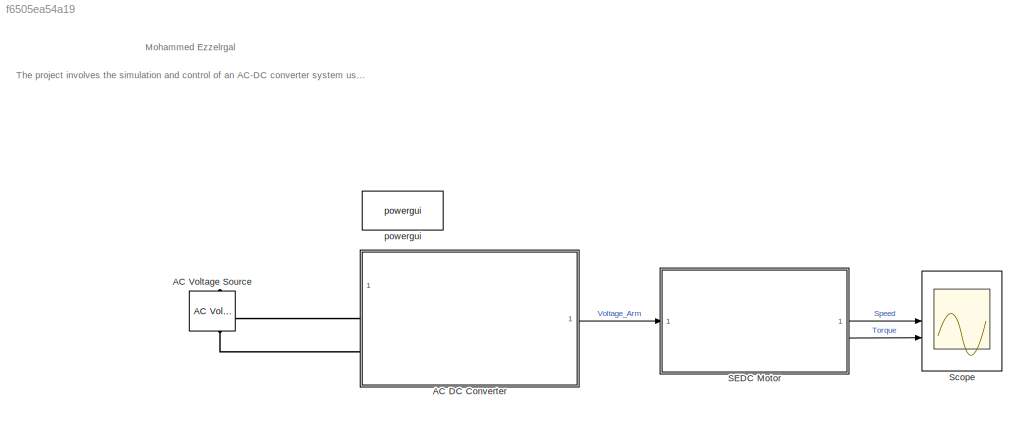
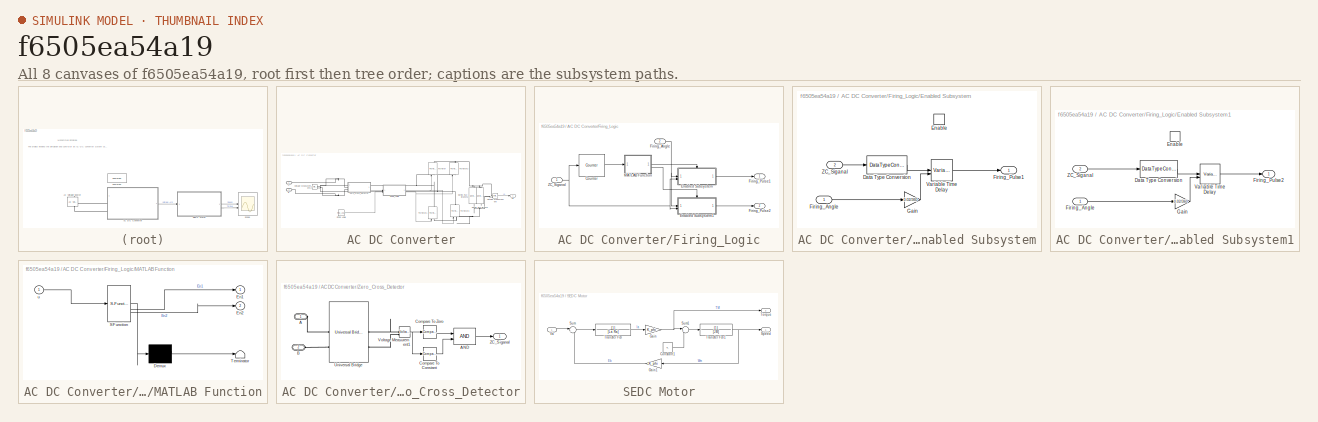
[diagram: thumbnail index - all 8 canvases of the model, root first then tree order]
MODEL slx_f6505ea54a19
KIND model
CONFIG AbsTol = auto
CONFIG EnableMultiTasking = off
CONFIG FixedStep = auto
CONFIG MaxStep = 0.001
CONFIG MinStep = auto
CONFIG RelTol = 1e-3
CONFIG SampleTimeConstraint = Unconstrained
CONFIG SolverName = VariableStepAuto
CONFIG StartTime = 0.0
CONFIG StopTime = 10
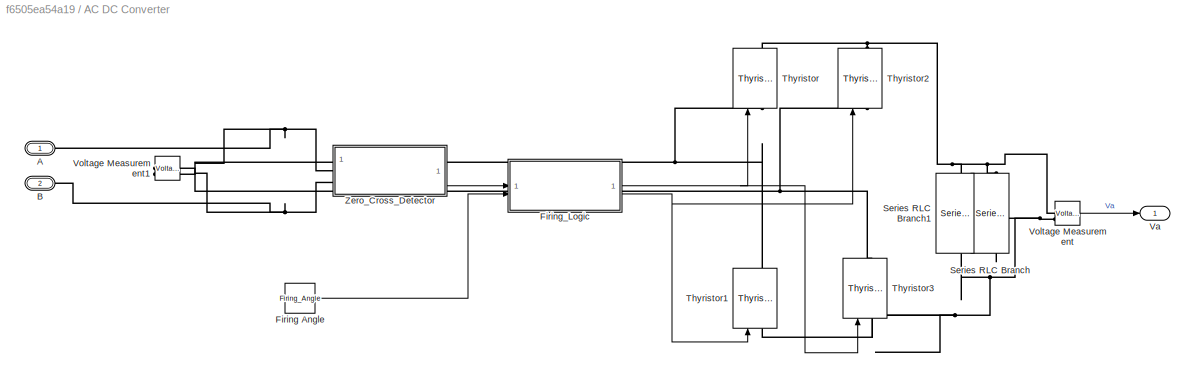
BLOCK [SubSystem] AC DC Converter
BLOCK [PMIOPort] AC DC Converter/A
  Side = Left
BLOCK [PMIOPort] AC DC Converter/B
  Port = 2
  Side = Left
BLOCK [Constant] AC DC Converter/Firing Angle
  Value = Firing_Angle
BLOCK [SubSystem] AC DC Converter/Firing_Logic
BLOCK [Reference] AC DC Converter/Firing_Logic/Counter  REF=dspswit3/Counter
  SourceBlock = dspswit3/Counter
  SourceType = Counter
BLOCK [SubSystem] AC DC Converter/Firing_Logic/Enabled Subsystem
  TreatAsAtomicUnit = on
BLOCK [DataTypeConversion] AC DC Converter/Firing_Logic/Enabled Subsystem/Data Type Conversion
  OutDataTypeStr = double
  RndMeth = Floor
  SaturateOnIntegerOverflow = off
BLOCK [EnablePort] AC DC Converter/Firing_Logic/Enabled Subsystem/Enable
BLOCK [Inport] AC DC Converter/Firing_Logic/Enabled Subsystem/Firing_Angle
BLOCK [Outport] AC DC Converter/Firing_Logic/Enabled Subsystem/Firing_Pulse1
BLOCK [Gain] AC DC Converter/Firing_Logic/Enabled Subsystem/Gain
  Gain = 0.02/360
BLOCK [VariableTransportDelay] AC DC Converter/Firing_Logic/Enabled Subsystem/Variable Time Delay
  MaximumDelay = 10
BLOCK [Inport] AC DC Converter/Firing_Logic/Enabled Subsystem/ZC_Siganal
  Port = 2
BLOCK [SubSystem] AC DC Converter/Firing_Logic/Enabled Subsystem1
  TreatAsAtomicUnit = on
BLOCK [DataTypeConversion] AC DC Converter/Firing_Logic/Enabled Subsystem1/Data Type Conversion
  OutDataTypeStr = double
  RndMeth = Floor
  SaturateOnIntegerOverflow = off
BLOCK [EnablePort] AC DC Converter/Firing_Logic/Enabled Subsystem1/Enable
BLOCK [Inport] AC DC Converter/Firing_Logic/Enabled Subsystem1/Firing_Angle
BLOCK [Outport] AC DC Converter/Firing_Logic/Enabled Subsystem1/Firing_Pulse2
BLOCK [Gain] AC DC Converter/Firing_Logic/Enabled Subsystem1/Gain
  Gain = 0.02/360
BLOCK [VariableTransportDelay] AC DC Converter/Firing_Logic/Enabled Subsystem1/Variable Time Delay
  MaximumDelay = 10
BLOCK [Inport] AC DC Converter/Firing_Logic/Enabled Subsystem1/ZC_Siganal
  Port = 2
BLOCK [Inport] AC DC Converter/Firing_Logic/Firing_Angle
  Port = 2
BLOCK [Outport] AC DC Converter/Firing_Logic/Firing_Pulse1
BLOCK [Outport] AC DC Converter/Firing_Logic/Firing_Pulse2
  Port = 2
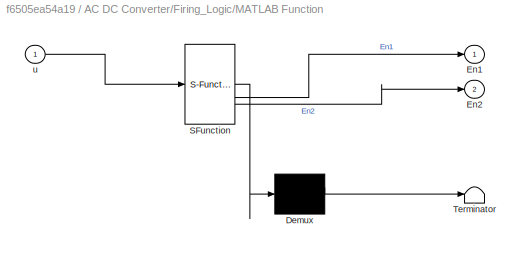
BLOCK [SubSystem] AC DC Converter/Firing_Logic/MATLAB Function
  ErrorFcn = Stateflow.Translate.translate
  LibrarySourceBlock = simulink/User-Defined\nFunctions/MATLAB Function
  PermitHierarchicalResolution = ExplicitOnly
  SFBlockType = MATLAB Function
  TreatAsAtomicUnit = on
BLOCK [Demux] AC DC Converter/Firing_Logic/MATLAB Function/ Demux 
  Outputs = 1
BLOCK [S-Function] AC DC Converter/Firing_Logic/MATLAB Function/ SFunction 
  EnableBusSupport = on
  FunctionName = sf_sfun
  PortCounts = [1 3]
  SFcnIsStateOwnerBlock = off
  SFunctionDeploymentMode = off
  Tag = Stateflow S-Function 1
BLOCK [Terminator] AC DC Converter/Firing_Logic/MATLAB Function/ Terminator 
BLOCK [Outport] AC DC Converter/Firing_Logic/MATLAB Function/En1
BLOCK [Outport] AC DC Converter/Firing_Logic/MATLAB Function/En2
  Port = 2
BLOCK [Inport] AC DC Converter/Firing_Logic/MATLAB Function/u
BLOCK [Inport] AC DC Converter/Firing_Logic/ZC_Siganal
BLOCK [Reference] AC DC Converter/Series RLC Branch  REF=spsSeriesRLCBranchLib/Series RLC Branch
  LibrarySourceBlock = sps_lib/Passives/Series RLC Branch
  NameLocation = left
  SourceBlock = spsSeriesRLCBranchLib/Series RLC Branch
  SourceType = Series RLC Branch
BLOCK [Reference] AC DC Converter/Series RLC Branch1  REF=spsSeriesRLCBranchLib/Series RLC Branch
  LibrarySourceBlock = sps_lib/Passives/Series RLC Branch
  NameLocation = left
  SourceBlock = spsSeriesRLCBranchLib/Series RLC Branch
  SourceType = Series RLC Branch
BLOCK [Reference] AC DC Converter/Thyristor  REF=spsThyristorLib/Thyristor
  LibrarySourceBlock = sps_lib/Power Electronics/Thyristor
  NameLocation = right
  SourceBlock = spsThyristorLib/Thyristor
  SourceType = Thyristor
BLOCK [Reference] AC DC Converter/Thyristor1  REF=spsThyristorLib/Thyristor
  LibrarySourceBlock = sps_lib/Power Electronics/Thyristor
  NameLocation = right
  SourceBlock = spsThyristorLib/Thyristor
  SourceType = Thyristor
BLOCK [Reference] AC DC Converter/Thyristor2  REF=spsThyristorLib/Thyristor
  LibrarySourceBlock = sps_lib/Power Electronics/Thyristor
  NameLocation = right
  SourceBlock = spsThyristorLib/Thyristor
  SourceType = Thyristor
BLOCK [Reference] AC DC Converter/Thyristor3  REF=spsThyristorLib/Thyristor
  LibrarySourceBlock = sps_lib/Power Electronics/Thyristor
  NameLocation = right
  SourceBlock = spsThyristorLib/Thyristor
  SourceType = Thyristor
BLOCK [Outport] AC DC Converter/Va
BLOCK [Reference] AC DC Converter/Voltage Measurement  REF=spsVoltageMeasurementLib/Voltage Measurement
  LibrarySourceBlock = sps_lib/Sensors and Measurements/Voltage Measurement
  SourceBlock = spsVoltageMeasurementLib/Voltage Measurement
  SourceType = Voltage Measurement
  UserDataPersistent = on
BLOCK [Reference] AC DC Converter/Voltage Measurement1  REF=spsVoltageMeasurementLib/Voltage Measurement
  LibrarySourceBlock = sps_lib/Sensors and Measurements/Voltage Measurement
  NameLocation = top
  SourceBlock = spsVoltageMeasurementLib/Voltage Measurement
  SourceType = Voltage Measurement
  UserDataPersistent = on
BLOCK [SubSystem] AC DC Converter/Zero_Cross_Detector
BLOCK [PMIOPort] AC DC Converter/Zero_Cross_Detector/A
  Side = Left
BLOCK [Logic] AC DC Converter/Zero_Cross_Detector/AND
  AllPortsSameDT = off
  IconShape = distinctive
  OutDataTypeStr = boolean
BLOCK [PMIOPort] AC DC Converter/Zero_Cross_Detector/B
  Port = 2
  Side = Left
BLOCK [Reference] AC DC Converter/Zero_Cross_Detector/Compare To Constant  REF=simulink/Logic and Bit
Operations/Compare
To Constant
  SourceBlock = simulink/Logic and Bit\nOperations/Compare\nTo Constant
  SourceType = Compare To Constant
BLOCK [Reference] AC DC Converter/Zero_Cross_Detector/Compare To Zero  REF=simulink/Logic and Bit
Operations/Compare
To Zero
  SourceBlock = simulink/Logic and Bit\nOperations/Compare\nTo Zero
  SourceType = Compare To Zero
BLOCK [Reference] AC DC Converter/Zero_Cross_Detector/Universal Bridge  REF=spsUniversalBridgeLib/Universal Bridge
  LibrarySourceBlock = sps_lib/Power Electronics/Universal Bridge
  SourceBlock = spsUniversalBridgeLib/Universal Bridge
  SourceType = Universal Bridge
BLOCK [Reference] AC DC Converter/Zero_Cross_Detector/Voltage Measurement1  REF=spsVoltageMeasurementLib/Voltage Measurement
  LibrarySourceBlock = sps_lib/Sensors and Measurements/Voltage Measurement
  SourceBlock = spsVoltageMeasurementLib/Voltage Measurement
  SourceType = Voltage Measurement
  UserDataPersistent = on
BLOCK [Outport] AC DC Converter/Zero_Cross_Detector/ZC_Siganal
BLOCK [Reference] AC Voltage Source  REF=spsACVoltageSourceLib/AC Voltage Source
  LibrarySourceBlock = sps_lib/Sources/AC Voltage Source
  SourceBlock = spsACVoltageSourceLib/AC Voltage Source
  SourceType = AC Voltage Source
BLOCK [SubSystem] SEDC Motor
BLOCK [Constant] SEDC Motor/Constant1
  Value = TL
BLOCK [Gain] SEDC Motor/Gain
  Gain = K_phi
BLOCK [Gain] SEDC Motor/Gain1
  Gain = K_phi
  NameLocation = top
BLOCK [Outport] SEDC Motor/Speed
BLOCK [Sum] SEDC Motor/Sum
  Inputs = |+-
BLOCK [Sum] SEDC Motor/Sum1
  Inputs = |+-
BLOCK [Outport] SEDC Motor/Torque
  Port = 2
BLOCK [TransferFcn] SEDC Motor/Transfer Fcn
  Denominator = [La Ra]
BLOCK [TransferFcn] SEDC Motor/Transfer Fcn1
  Denominator = [J B]
BLOCK [Inport] SEDC Motor/Va
BLOCK [Scope] Scope
  Floating = off
  NumInputPorts = 2
  ScopeSpecificationString = Simulink.scopes.TimeScopeBlockCfg('CurrentConfiguration', extmgr.ConfigurationSet(extmgr.Configuration('Core','General UI',true),extmgr.Configuration('Core','Source UI',true),extmgr.Configuration('Sources','WiredSimulink',true),extmgr.Configuration('Visuals','Time Domain',true,'SerializedDisplays',{struct('MinYLimReal','-1.33506','MaxYLimReal','10.67056','YLabelReal','','MinYLimMag','0.00000','Max...<+2025ch>
BLOCK [Reference] powergui  REF=sps_lib/powergui
  Priority = 1
  SourceBlock = sps_lib/powergui
  SourceType = PSB option menu block
ANNOTATION (root): The project involves the simulation and control of an AC-DC converter system using Simulink. The system comprises a single-phase full-wave rectifier connected to a DC motor. The AC input is rectified to produce a DC output voltage, which is then used to drive the DC motor.
ANNOTATION (root): Mohammed Ezzelrgal
LINE AC DC Converter/Firing Angle:1 -> AC DC Converter/Firing_Logic:2
LINE AC DC Converter/Firing_Logic/Counter:1 -> AC DC Converter/Firing_Logic/MATLAB Function:1
LINE AC DC Converter/Firing_Logic/Enabled Subsystem/Data Type Conversion:1 -> AC DC Converter/Firing_Logic/Enabled Subsystem/Variable Time Delay:1
LINE AC DC Converter/Firing_Logic/Enabled Subsystem/Firing_Angle:1 -> AC DC Converter/Firing_Logic/Enabled Subsystem/Gain:1
LINE AC DC Converter/Firing_Logic/Enabled Subsystem/Gain:1 -> AC DC Converter/Firing_Logic/Enabled Subsystem/Variable Time Delay:2
LINE AC DC Converter/Firing_Logic/Enabled Subsystem/Variable Time Delay:1 -> AC DC Converter/Firing_Logic/Enabled Subsystem/Firing_Pulse1:1
LINE AC DC Converter/Firing_Logic/Enabled Subsystem/ZC_Siganal:1 -> AC DC Converter/Firing_Logic/Enabled Subsystem/Data Type Conversion:1
LINE AC DC Converter/Firing_Logic/Enabled Subsystem1/Data Type Conversion:1 -> AC DC Converter/Firing_Logic/Enabled Subsystem1/Variable Time Delay:1
LINE AC DC Converter/Firing_Logic/Enabled Subsystem1/Firing_Angle:1 -> AC DC Converter/Firing_Logic/Enabled Subsystem1/Gain:1
LINE AC DC Converter/Firing_Logic/Enabled Subsystem1/Gain:1 -> AC DC Converter/Firing_Logic/Enabled Subsystem1/Variable Time Delay:2
LINE AC DC Converter/Firing_Logic/Enabled Subsystem1/Variable Time Delay:1 -> AC DC Converter/Firing_Logic/Enabled Subsystem1/Firing_Pulse2:1
LINE AC DC Converter/Firing_Logic/Enabled Subsystem1/ZC_Siganal:1 -> AC DC Converter/Firing_Logic/Enabled Subsystem1/Data Type Conversion:1
LINE AC DC Converter/Firing_Logic/Enabled Subsystem1:1 -> AC DC Converter/Firing_Logic/Firing_Pulse2:1
LINE AC DC Converter/Firing_Logic/Enabled Subsystem:1 -> AC DC Converter/Firing_Logic/Firing_Pulse1:1
NET AC DC Converter/Firing_Logic/Firing_Angle:1 -> AC DC Converter/Firing_Logic/Enabled Subsystem1:1, AC DC Converter/Firing_Logic/Enabled Subsystem:1
LINE AC DC Converter/Firing_Logic/MATLAB Function:1 -> AC DC Converter/Firing_Logic/Enabled Subsystem:enable
LINE AC DC Converter/Firing_Logic/MATLAB Function:2 -> AC DC Converter/Firing_Logic/Enabled Subsystem1:enable
NET AC DC Converter/Firing_Logic/ZC_Siganal:1 -> AC DC Converter/Firing_Logic/Counter:1, AC DC Converter/Firing_Logic/Enabled Subsystem1:2, AC DC Converter/Firing_Logic/Enabled Subsystem:2
NET AC DC Converter/Firing_Logic:1 -> AC DC Converter/Thyristor3:1, AC DC Converter/Thyristor:1
NET AC DC Converter/Firing_Logic:2 -> AC DC Converter/Thyristor1:1, AC DC Converter/Thyristor2:1
LINE AC DC Converter/Voltage Measurement:1 -> AC DC Converter/Va:1
LINE AC DC Converter/Zero_Cross_Detector/AND:1 -> AC DC Converter/Zero_Cross_Detector/ZC_Siganal:1
LINE AC DC Converter/Zero_Cross_Detector/Compare To Constant:1 -> AC DC Converter/Zero_Cross_Detector/AND:2
LINE AC DC Converter/Zero_Cross_Detector/Compare To Zero:1 -> AC DC Converter/Zero_Cross_Detector/AND:1
NET AC DC Converter/Zero_Cross_Detector/Voltage Measurement1:1 -> AC DC Converter/Zero_Cross_Detector/Compare To Constant:1, AC DC Converter/Zero_Cross_Detector/Compare To Zero:1
LINE AC DC Converter/Zero_Cross_Detector:1 -> AC DC Converter/Firing_Logic:1
LINE AC DC Converter:1 -> SEDC Motor:1
LINE SEDC Motor/Constant1:1 -> SEDC Motor/Sum1:2
LINE SEDC Motor/Gain1:1 -> SEDC Motor/Sum:2
NET SEDC Motor/Gain:1 -> SEDC Motor/Sum1:1, SEDC Motor/Torque:1
LINE SEDC Motor/Sum1:1 -> SEDC Motor/Transfer Fcn1:1
LINE SEDC Motor/Sum:1 -> SEDC Motor/Transfer Fcn:1
NET SEDC Motor/Transfer Fcn1:1 -> SEDC Motor/Gain1:1, SEDC Motor/Speed:1
LINE SEDC Motor/Transfer Fcn:1 -> SEDC Motor/Gain:1
LINE SEDC Motor/Va:1 -> SEDC Motor/Sum:1
LINE SEDC Motor:1 -> Scope:1
LINE SEDC Motor:2 -> Scope:2
PNET net1: AC DC Converter/A:RConn1 -- AC DC Converter/Thyristor1:RConn1 -- AC DC Converter/Thyristor:LConn1 -- AC DC Converter/Voltage Measurement1:LConn2 -- AC DC Converter/Zero_Cross_Detector:LConn1
PNET net2: AC DC Converter/B:RConn1 -- AC DC Converter/Thyristor2:LConn1 -- AC DC Converter/Thyristor3:RConn1 -- AC DC Converter/Voltage Measurement1:LConn1 -- AC DC Converter/Zero_Cross_Detector:LConn2
PNET net3: AC DC Converter/Series RLC Branch1:LConn1 -- AC DC Converter/Series RLC Branch:LConn1 -- AC DC Converter/Thyristor2:RConn1 -- AC DC Converter/Thyristor:RConn1 -- AC DC Converter/Voltage Measurement:LConn1
PNET net4: AC DC Converter/Series RLC Branch1:RConn1 -- AC DC Converter/Series RLC Branch:RConn1 -- AC DC Converter/Thyristor1:LConn1 -- AC DC Converter/Thyristor3:LConn1 -- AC DC Converter/Voltage Measurement:LConn2
PLINE AC DC Converter/Zero_Cross_Detector/A:RConn1 -- AC DC Converter/Zero_Cross_Detector/Universal Bridge:LConn1
PLINE AC DC Converter/Zero_Cross_Detector/B:RConn1 -- AC DC Converter/Zero_Cross_Detector/Universal Bridge:LConn2
PLINE AC DC Converter/Zero_Cross_Detector/Universal Bridge:RConn1 -- AC DC Converter/Zero_Cross_Detector/Voltage Measurement1:LConn1
PLINE AC DC Converter/Zero_Cross_Detector/Universal Bridge:RConn2 -- AC DC Converter/Zero_Cross_Detector/Voltage Measurement1:LConn2
PLINE AC DC Converter:LConn1 -- AC Voltage Source:RConn1
PLINE AC DC Converter:LConn2 -- AC Voltage Source:LConn1
note: NET lines group one-source signal fan-out (src -> all destinations, sorted); 1:1 wires keep LINE; PNET lines group multi-terminal physical nets as a canonical sorted terminal list (undirected conserving connections); 2-terminal nets keep the pairwise PLINE form
CHART AC DC Converter/Firing_Logic/MATLAB Function states=1 transitions=1
  STATE_LABEL 'eML_blk_kernel()'
  STATE_LABEL 'SCRIPT:\nfunction [En1, En2] = fcn(u)\nEn1 = 0 ;\nEn2 = 0 ;\n\nif mod(u,2) == 0\n  En1 = 1 ;\n  En2 = 0 ;\n\nend\n\nif mod(u,2) == 1\n  En1 = 0 ;\n  En2 = 1 ;\n\nend\n\n'
CHART  states=0 transitions=0
